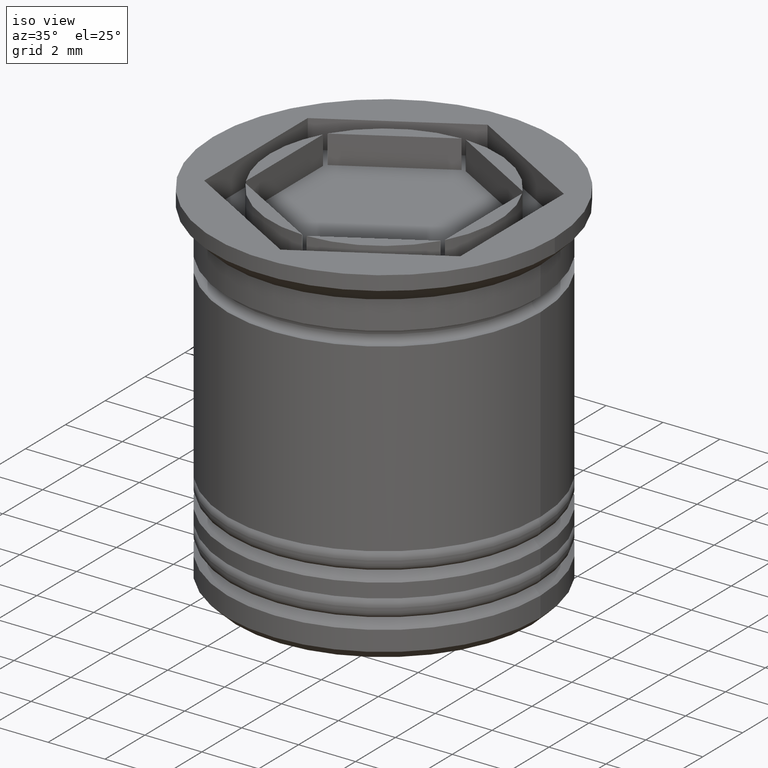
[diagram: clean part render]
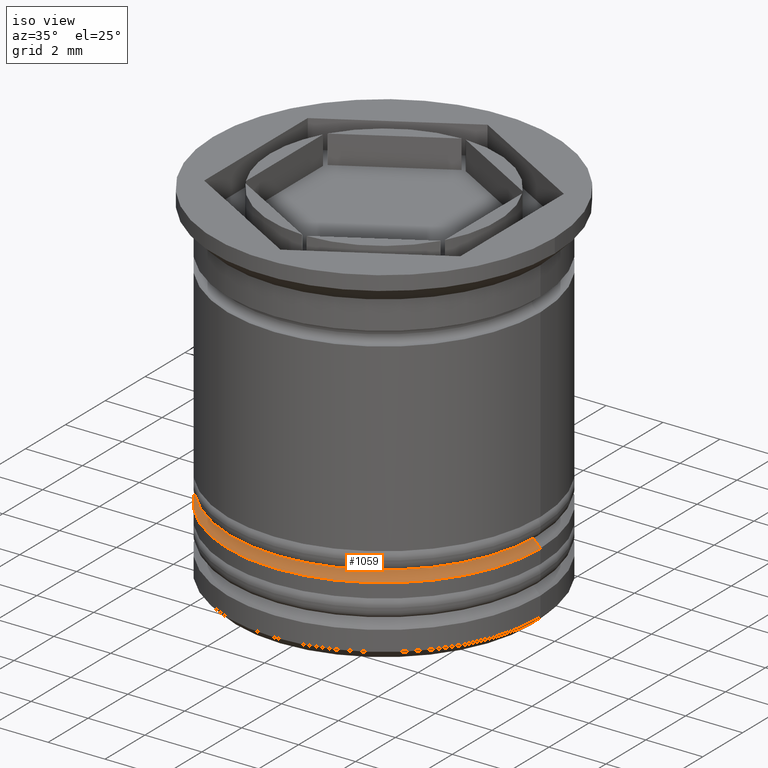
[diagram: same view with one face highlighted and labeled with its STEP entity id]
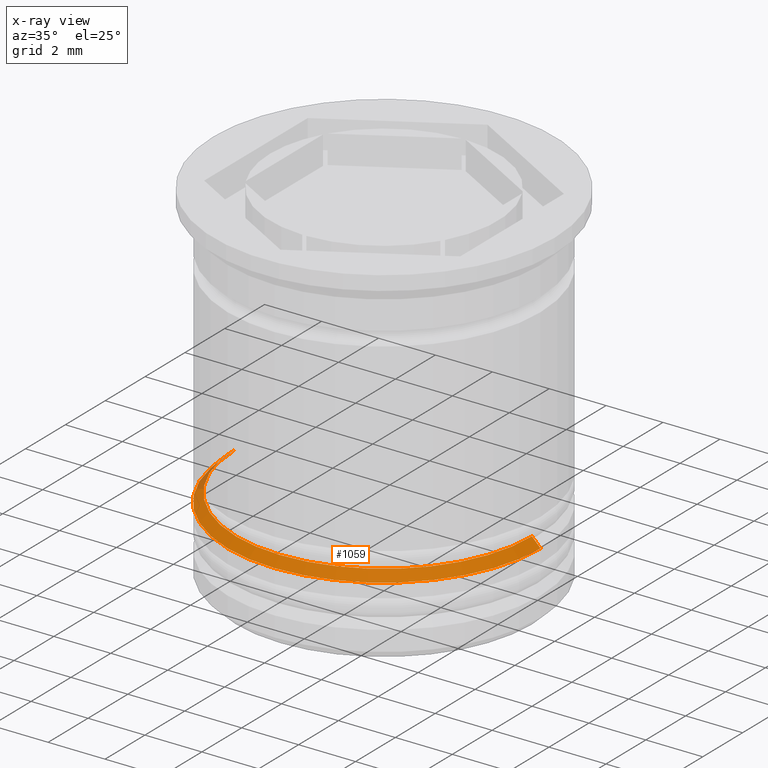
[diagram: x-ray of the same camera — body ghosted, the highlighted face saturated]
A machine part, iso view. The second image highlights one B-rep face of the part: STEP entity #1059.
The next image is the same camera in x-ray: the body ghosted, the highlighted face saturated — about 2% of this face is hidden behind the body in this view.
In plain terms, the highlighted conical surface has half-angle 45 deg.
Its self-contained STEP definition (entity closure, byte-faithful):
#35 = VERTEX_POINT ( 'NONE', #1446 ) ;
#46 = DIRECTION ( 'NONE',  ( -1.000000000000000000, 0.000000000000000000, 0.000000000000000000 ) ) ;
#82 = EDGE_CURVE ( 'NONE', #1913, #1719, #395, .T. ) ;
#124 = CARTESIAN_POINT ( 'NONE',  ( 0.000000000000000000, 0.000000000000000000, -10.00000000000000533 ) ) ;
#252 = CARTESIAN_POINT ( 'NONE',  ( 0.000000000000000000, 0.000000000000000000, -9.500000000000001776 ) ) ;
#395 = CIRCLE ( 'NONE', #1061, 5.200000000000000178 ) ;
#439 = LINE ( 'NONE', #889, #964 ) ;
#525 = DIRECTION ( 'NONE',  ( 0.000000000000000000, 0.000000000000000000, -1.000000000000000000 ) ) ;
#551 = EDGE_LOOP ( 'NONE', ( #1288, #762, #1264, #1848 ) ) ;
#561 = CONICAL_SURFACE ( 'NONE', #760, 4.999999999999992006, 0.7853981633974533860 ) ;
#563 = AXIS2_PLACEMENT_3D ( 'NONE', #124, #525, #747 ) ;
#597 = EDGE_CURVE ( 'NONE', #1719, #1245, #439, .T. ) ;
#602 = DIRECTION ( 'NONE',  ( -1.000000000000000000, 0.000000000000000000, 0.000000000000000000 ) ) ;
#643 = CARTESIAN_POINT ( 'NONE',  ( -5.200000000000000178, 6.368163355566236381E-16, -9.700000000000006395 ) ) ;
#739 = CARTESIAN_POINT ( 'NONE',  ( 5.200000000000000178, 0.000000000000000000, -9.700000000000006395 ) ) ;
#747 = DIRECTION ( 'NONE',  ( -1.000000000000000000, 0.000000000000000000, 0.000000000000000000 ) ) ;
#760 = AXIS2_PLACEMENT_3D ( 'NONE', #252, #1514, #602 ) ;
#762 = ORIENTED_EDGE ( 'NONE', *, *, #82, .F. ) ;
#834 = CARTESIAN_POINT ( 'NONE',  ( -4.999999999999992006, 0.000000000000000000, -9.500000000000001776 ) ) ;
#882 = CIRCLE ( 'NONE', #563, 5.500000000000001776 ) ;
#889 = CARTESIAN_POINT ( 'NONE',  ( 4.999999999999992006, 6.123233995736756422E-16, -9.500000000000001776 ) ) ;
#934 = EDGE_CURVE ( 'NONE', #1913, #35, #1919, .T. ) ;
#964 = VECTOR ( 'NONE', #1017, 1000.000000000000000 ) ;
#979 = CARTESIAN_POINT ( 'NONE',  ( 0.000000000000000000, 0.000000000000000000, -9.700000000000006395 ) ) ;
#1017 = DIRECTION ( 'NONE',  ( 0.7071067811865512365, 8.659560562354978464E-17, -0.7071067811865439090 ) ) ;
#1059 = ADVANCED_FACE ( 'NONE', ( #1642 ), #561, .T. ) ;
#1061 = AXIS2_PLACEMENT_3D ( 'NONE', #979, #1145, #46 ) ;
#1145 = DIRECTION ( 'NONE',  ( -0.000000000000000000, -0.000000000000000000, 1.000000000000000000 ) ) ;
#1245 = VERTEX_POINT ( 'NONE', #1979 ) ;
#1264 = ORIENTED_EDGE ( 'NONE', *, *, #934, .T. ) ;
#1288 = ORIENTED_EDGE ( 'NONE', *, *, #597, .F. ) ;
#1446 = CARTESIAN_POINT ( 'NONE',  ( -5.500000000000001776, 6.735557395310443995E-16, -10.00000000000000533 ) ) ;
#1514 = DIRECTION ( 'NONE',  ( 0.000000000000000000, 0.000000000000000000, -1.000000000000000000 ) ) ;
#1642 = FACE_OUTER_BOUND ( 'NONE', #551, .T. ) ;
#1656 = VECTOR ( 'NONE', #1772, 1000.000000000000000 ) ;
#1719 = VERTEX_POINT ( 'NONE', #739 ) ;
#1772 = DIRECTION ( 'NONE',  ( -0.7071067811865512365, 0.000000000000000000, -0.7071067811865439090 ) ) ;
#1848 = ORIENTED_EDGE ( 'NONE', *, *, #1856, .F. ) ;
#1856 = EDGE_CURVE ( 'NONE', #1245, #35, #882, .T. ) ;
#1913 = VERTEX_POINT ( 'NONE', #643 ) ;
#1919 = LINE ( 'NONE', #834, #1656 ) ;
#1979 = CARTESIAN_POINT ( 'NONE',  ( 5.500000000000001776, 0.000000000000000000, -10.00000000000000533 ) ) ;